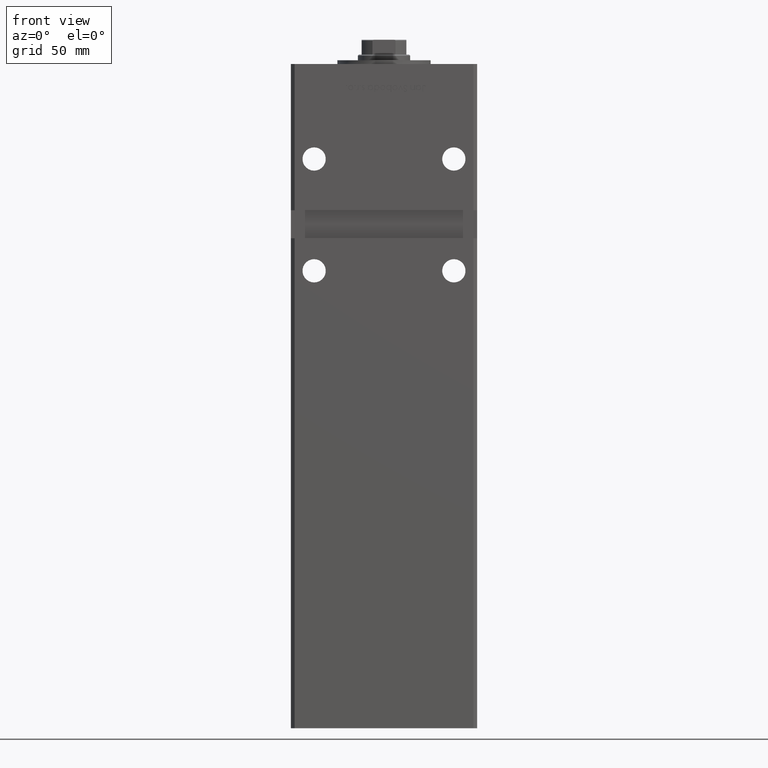
[diagram: clean part render]
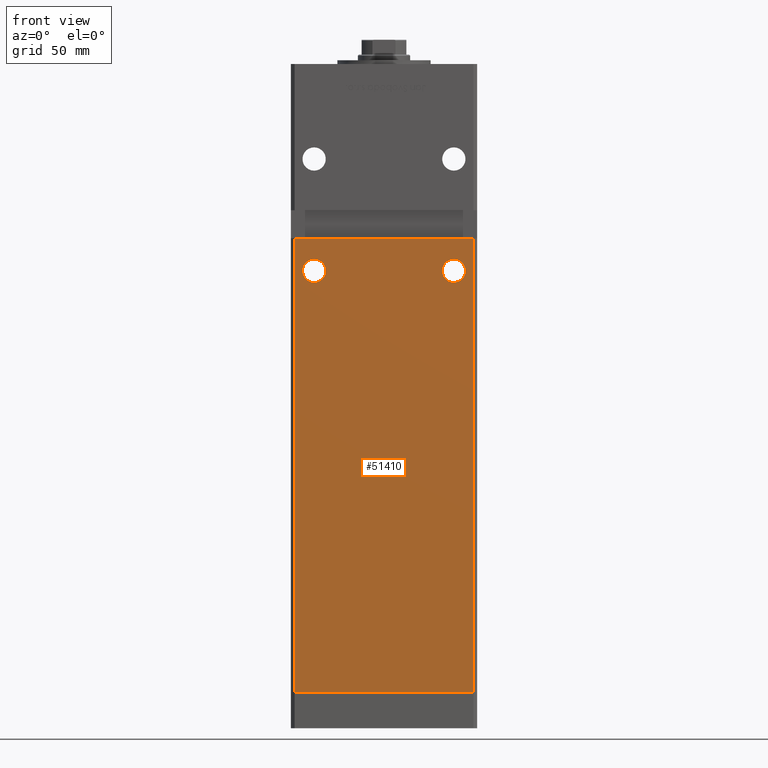
[diagram: same view with one face highlighted and labeled with its STEP entity id]
A machine part, front view. The second image highlights one B-rep face of the part: STEP entity #51410.
In plain terms, the highlighted planar face has unit normal (0, 1, 0).
Its self-contained STEP definition (entity closure, byte-faithful):
#1126 = CIRCLE ( 'NONE', #26970, 6.250000000000005329 ) ;
#2679 = CARTESIAN_POINT ( 'NONE',  ( 37.50000000000000000, -43.50000000000000000, 220.2500000000000000 ) ) ;
#3183 = LINE ( 'NONE', #30938, #15434 ) ;
#3995 = CARTESIAN_POINT ( 'NONE',  ( 37.50000000000000000, -43.50000000000000000, 226.5000000000000000 ) ) ;
#5499 = ORIENTED_EDGE ( 'NONE', *, *, #12679, .T. ) ;
#6015 = LINE ( 'NONE', #19199, #28688 ) ;
#6238 = ORIENTED_EDGE ( 'NONE', *, *, #28774, .T. ) ;
#8012 = CARTESIAN_POINT ( 'NONE',  ( -47.99999999999998579, -43.50000000000000000, 318.5000000000000000 ) ) ;
#8166 = DIRECTION ( 'NONE',  ( 0.000000000000000000, 0.000000000000000000, 1.000000000000000000 ) ) ;
#8192 = ORIENTED_EDGE ( 'NONE', *, *, #15831, .T. ) ;
#8265 = EDGE_CURVE ( 'NONE', #19170, #50201, #3183, .T. ) ;
#8744 = ORIENTED_EDGE ( 'NONE', *, *, #25728, .T. ) ;
#10229 = DIRECTION ( 'NONE',  ( 0.000000000000000000, 0.000000000000000000, 1.000000000000000000 ) ) ;
#11943 = EDGE_LOOP ( 'NONE', ( #6238, #22876 ) ) ;
#12436 = CARTESIAN_POINT ( 'NONE',  ( -37.50000000000000000, -43.50000000000000000, 220.2500000000000000 ) ) ;
#12477 = DIRECTION ( 'NONE',  ( 0.000000000000000000, 1.000000000000000000, 0.000000000000000000 ) ) ;
#12679 = EDGE_CURVE ( 'NONE', #21010, #39480, #22432, .T. ) ;
#13062 = DIRECTION ( 'NONE',  ( 1.000000000000000000, 0.000000000000000000, 0.000000000000000000 ) ) ;
#13306 = CIRCLE ( 'NONE', #20186, 6.250000000000005329 ) ;
#13325 = LINE ( 'NONE', #20879, #41433 ) ;
#13807 = CARTESIAN_POINT ( 'NONE',  ( -49.99999999999998579, -43.50000000000000000, 244.0000000000000000 ) ) ;
#13816 = AXIS2_PLACEMENT_3D ( 'NONE', #45027, #12477, #8166 ) ;
#15434 = VECTOR ( 'NONE', #31204, 1000.000000000000000 ) ;
#15595 = CARTESIAN_POINT ( 'NONE',  ( -47.99999999999998579, -43.50000000000000000, 0.000000000000000000 ) ) ;
#15831 = EDGE_CURVE ( 'NONE', #46364, #50201, #13325, .T. ) ;
#16557 = ORIENTED_EDGE ( 'NONE', *, *, #8265, .F. ) ;
#17325 = LINE ( 'NONE', #13807, #42708 ) ;
#18831 = VERTEX_POINT ( 'NONE', #52718 ) ;
#18870 = ORIENTED_EDGE ( 'NONE', *, *, #20442, .T. ) ;
#19170 = VERTEX_POINT ( 'NONE', #28182 ) ;
#19199 = CARTESIAN_POINT ( 'NONE',  ( -47.99999999999998579, -43.50000000000000000, 318.5000000000000000 ) ) ;
#19203 = CIRCLE ( 'NONE', #37250, 6.250000000000005329 ) ;
#20137 = DIRECTION ( 'NONE',  ( 0.000000000000000000, 1.000000000000000000, 0.000000000000000000 ) ) ;
#20186 = AXIS2_PLACEMENT_3D ( 'NONE', #45461, #29337, #33885 ) ;
#20277 = EDGE_CURVE ( 'NONE', #28479, #18831, #1126, .T. ) ;
#20423 = DIRECTION ( 'NONE',  ( 0.000000000000000000, 1.000000000000000000, 0.000000000000000000 ) ) ;
#20442 = EDGE_CURVE ( 'NONE', #39480, #21010, #19203, .T. ) ;
#20879 = CARTESIAN_POINT ( 'NONE',  ( -47.99999999999998579, -43.50000000000000000, 0.000000000000000000 ) ) ;
#21010 = VERTEX_POINT ( 'NONE', #2679 ) ;
#22432 = CIRCLE ( 'NONE', #13816, 6.250000000000005329 ) ;
#22876 = ORIENTED_EDGE ( 'NONE', *, *, #20277, .T. ) ;
#25728 = EDGE_CURVE ( 'NONE', #31899, #46364, #6015, .T. ) ;
#26970 = AXIS2_PLACEMENT_3D ( 'NONE', #35247, #38500, #10229 ) ;
#28182 = CARTESIAN_POINT ( 'NONE',  ( 47.99999999999998579, -43.50000000000000000, 244.0000000000000000 ) ) ;
#28479 = VERTEX_POINT ( 'NONE', #12436 ) ;
#28688 = VECTOR ( 'NONE', #35607, 1000.000000000000000 ) ;
#28774 = EDGE_CURVE ( 'NONE', #18831, #28479, #13306, .T. ) ;
#29337 = DIRECTION ( 'NONE',  ( 0.000000000000000000, 1.000000000000000000, 0.000000000000000000 ) ) ;
#30465 = CARTESIAN_POINT ( 'NONE',  ( 47.99999999999998579, -43.50000000000000000, 0.000000000000000000 ) ) ;
#30938 = CARTESIAN_POINT ( 'NONE',  ( 47.99999999999998579, -43.50000000000000000, 318.5000000000000000 ) ) ;
#31002 = FACE_BOUND ( 'NONE', #11943, .T. ) ;
#31204 = DIRECTION ( 'NONE',  ( -0.000000000000000000, -0.000000000000000000, -1.000000000000000000 ) ) ;
#31553 = CARTESIAN_POINT ( 'NONE',  ( 37.50000000000000000, -43.50000000000000000, 232.7500000000000000 ) ) ;
#31899 = VERTEX_POINT ( 'NONE', #43106 ) ;
#31905 = ORIENTED_EDGE ( 'NONE', *, *, #36207, .F. ) ;
#33729 = DIRECTION ( 'NONE',  ( 1.000000000000000000, 0.000000000000000000, 0.000000000000000000 ) ) ;
#33885 = DIRECTION ( 'NONE',  ( 0.000000000000000000, 0.000000000000000000, 1.000000000000000000 ) ) ;
#35247 = CARTESIAN_POINT ( 'NONE',  ( -37.50000000000000000, -43.50000000000000000, 226.5000000000000000 ) ) ;
#35607 = DIRECTION ( 'NONE',  ( -0.000000000000000000, -0.000000000000000000, -1.000000000000000000 ) ) ;
#36207 = EDGE_CURVE ( 'NONE', #31899, #19170, #17325, .T. ) ;
#36833 = DIRECTION ( 'NONE',  ( 0.000000000000000000, 0.000000000000000000, 1.000000000000000000 ) ) ;
#37250 = AXIS2_PLACEMENT_3D ( 'NONE', #3995, #20423, #36833 ) ;
#37516 = EDGE_LOOP ( 'NONE', ( #16557, #31905, #8744, #8192 ) ) ;
#38500 = DIRECTION ( 'NONE',  ( 0.000000000000000000, 1.000000000000000000, 0.000000000000000000 ) ) ;
#38695 = AXIS2_PLACEMENT_3D ( 'NONE', #8012, #20137, #47926 ) ;
#39480 = VERTEX_POINT ( 'NONE', #31553 ) ;
#41108 = EDGE_LOOP ( 'NONE', ( #18870, #5499 ) ) ;
#41433 = VECTOR ( 'NONE', #13062, 1000.000000000000000 ) ;
#42708 = VECTOR ( 'NONE', #33729, 1000.000000000000000 ) ;
#43106 = CARTESIAN_POINT ( 'NONE',  ( -47.99999999999998579, -43.50000000000000000, 244.0000000000000000 ) ) ;
#43632 = FACE_OUTER_BOUND ( 'NONE', #37516, .T. ) ;
#43894 = FACE_BOUND ( 'NONE', #41108, .T. ) ;
#45027 = CARTESIAN_POINT ( 'NONE',  ( 37.50000000000000000, -43.50000000000000000, 226.5000000000000000 ) ) ;
#45461 = CARTESIAN_POINT ( 'NONE',  ( -37.50000000000000000, -43.50000000000000000, 226.5000000000000000 ) ) ;
#46364 = VERTEX_POINT ( 'NONE', #15595 ) ;
#47402 = PLANE ( 'NONE',  #38695 ) ;
#47926 = DIRECTION ( 'NONE',  ( 0.000000000000000000, -0.000000000000000000, 1.000000000000000000 ) ) ;
#50201 = VERTEX_POINT ( 'NONE', #30465 ) ;
#51410 = ADVANCED_FACE ( 'NONE', ( #31002, #43894, #43632 ), #47402, .F. ) ;
#52718 = CARTESIAN_POINT ( 'NONE',  ( -37.50000000000000000, -43.50000000000000000, 232.7500000000000000 ) ) ;